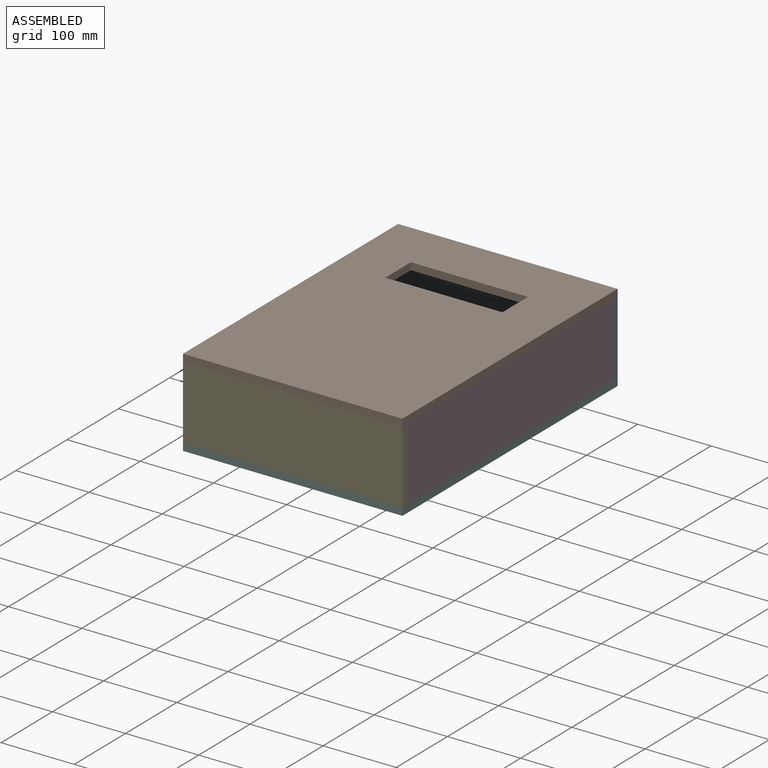
[diagram: assembled view]
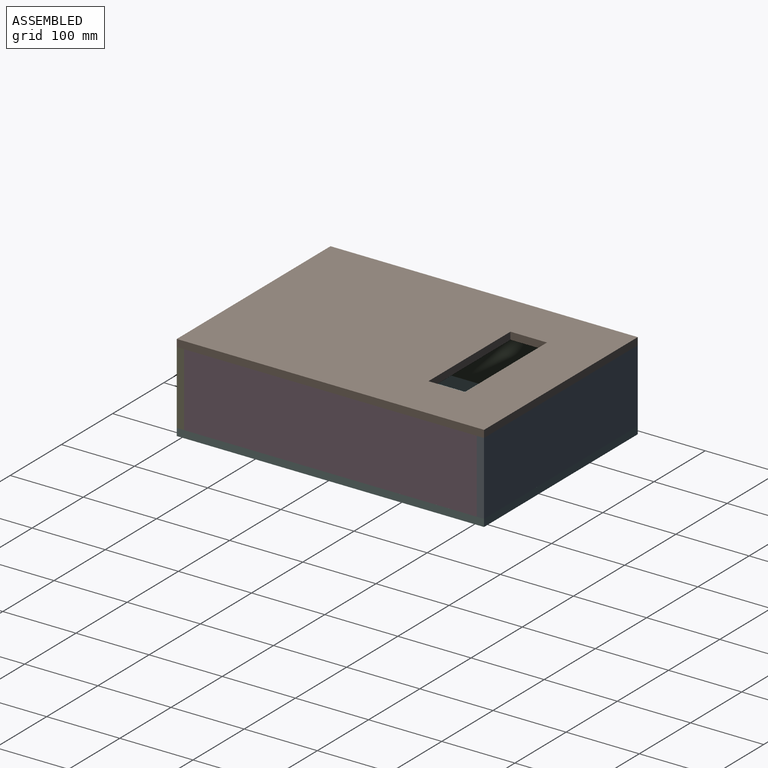
[diagram: assembled view, second angle]
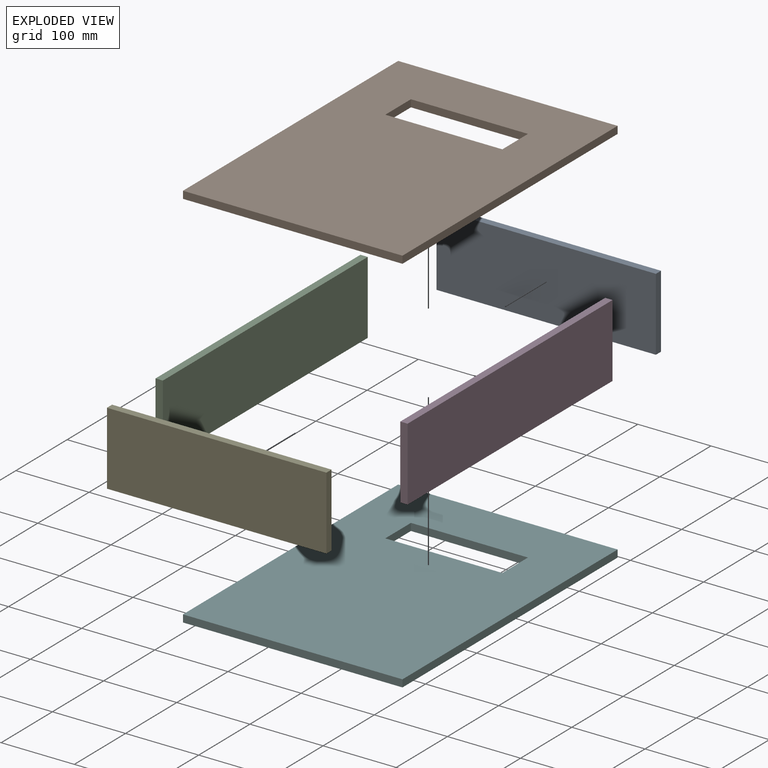
[diagram: exploded view]
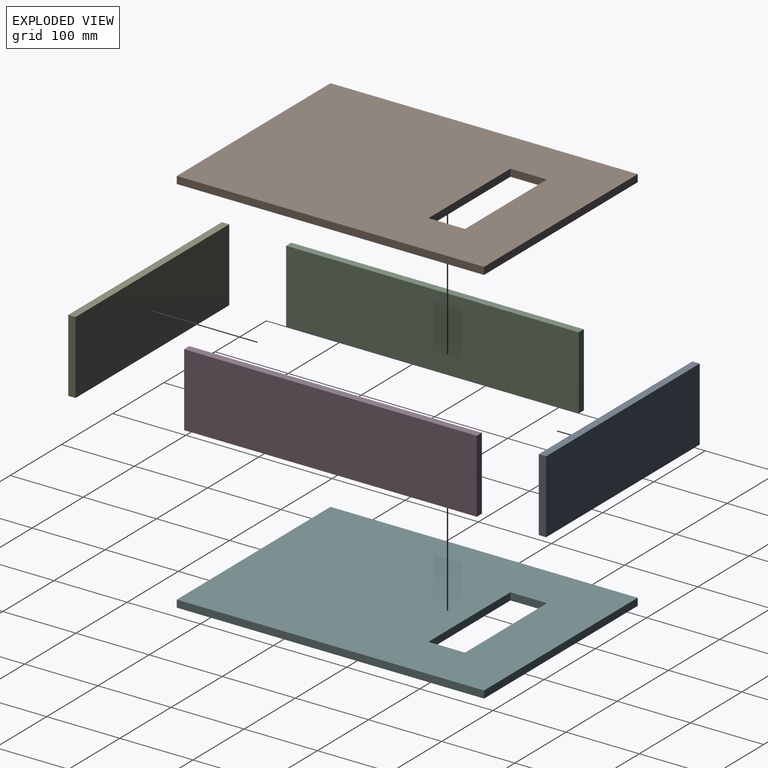
[diagram: exploded view, second angle]
ASSEMBLY  parts=6 mates=5
PART A: 6 faces, bbox 300x10x100 mm
  f0: plane 300x10mm, normal (0,0,-1), area 3000mm2, adj f1,f3,f4,f5
  f1: plane 100x10mm, normal (1,0,0), area 1000mm2, adj f0,f2,f4,f5
  f2: plane 300x10mm, normal (0,0,1), area 3000mm2, adj f1,f3,f4,f5
  f3: plane 100x10mm, normal (-1,0,0), area 1000mm2, adj f0,f2,f4,f5
  f4: plane 300x100mm, normal (0,-1,0), area 30000mm2, adj f0,f1,f2,f3
  f5: plane 300x100mm, normal (0,1,0), area 30000mm2, adj f0,f1,f2,f3
PART B: 10 faces, bbox 300x10x420 mm
  f0: plane 300x10mm, normal (0,0,1), area 3000mm2, adj f1,f7,f8,f9
  f1: plane 420x10mm, normal (-1,0,0), area 4200mm2, adj f0,f2,f8,f9
  f2: plane 300x10mm, normal (0,0,-1), area 3000mm2, adj f1,f7,f8,f9
  f3: plane 160x10mm, normal (0,0,1), area 1600mm2, adj f4,f6,f8,f9
  f4: plane 50x10mm, normal (1,0,0), area 500mm2, adj f3,f5,f8,f9
  f5: plane 160x10mm, normal (0,0,-1), area 1600mm2, adj f4,f6,f8,f9
  f6: plane 50x10mm, normal (-1,0,0), area 500mm2, adj f3,f5,f8,f9
  f7: plane 420x10mm, normal (1,0,0), area 4200mm2, adj f0,f2,f8,f9
  f8: plane 420x300mm, normal (0,-1,0), area 118000mm2, adj f0,f1,f2,f3,f4,f5,f6,f7
  f9: plane 420x300mm, normal (0,1,0), area 118000mm2, adj f0,f1,f2,f3,f4,f5,f6,f7
PART C: 6 faces, bbox 400x10x100 mm
  f0: plane 400x10mm, normal (0,0,1), area 4000mm2, adj f1,f3,f4,f5
  f1: plane 100x10mm, normal (-1,0,0), area 1000mm2, adj f0,f2,f4,f5
  f2: plane 400x10mm, normal (0,0,-1), area 4000mm2, adj f1,f3,f4,f5
  f3: plane 100x10mm, normal (1,0,0), area 1000mm2, adj f0,f2,f4,f5
  f4: plane 400x100mm, normal (0,-1,0), area 40000mm2, adj f0,f1,f2,f3
  f5: plane 400x100mm, normal (0,1,0), area 40000mm2, adj f0,f1,f2,f3
PART D: same geometry as C
PART E: same geometry as A
PART F: same geometry as B
PLACE A t=(-6.06,-16.36,32.92)mm
PLACE B rot(axis=(-1,0,0),90deg) t=(-6.06,3.64,132.92)mm
PLACE C rot(axis=(0,0,-1),90deg) t=(-296.06,-6.36,32.92)mm
PLACE D rot(axis=(0,0,-1),90deg) t=(-6.06,-6.36,32.92)mm
PLACE E t=(-6.06,-426.36,32.92)mm
PLACE F rot(axis=(-1,0,0),90deg) t=(-6.06,3.64,22.92)mm
MATE fastened E.f5 <-> D.f3  axis (0,1,0) through (-6.06,-426.36,132.92)mm
MATE fastened B.f9 <-> A.f2  axis (0,0,-1) through (-6.06,-16.36,132.92)mm
MATE fastened D.f1 <-> A.f4  axis (0,1,0) through (-6.06,-26.36,132.92)mm
MATE fastened F.f8 <-> A.f0  axis (0,0,1) through (-6.06,-16.36,32.92)mm
MATE fastened C.f1 <-> A.f4  axis (0,1,0) through (-306.06,-26.36,132.92)mm
